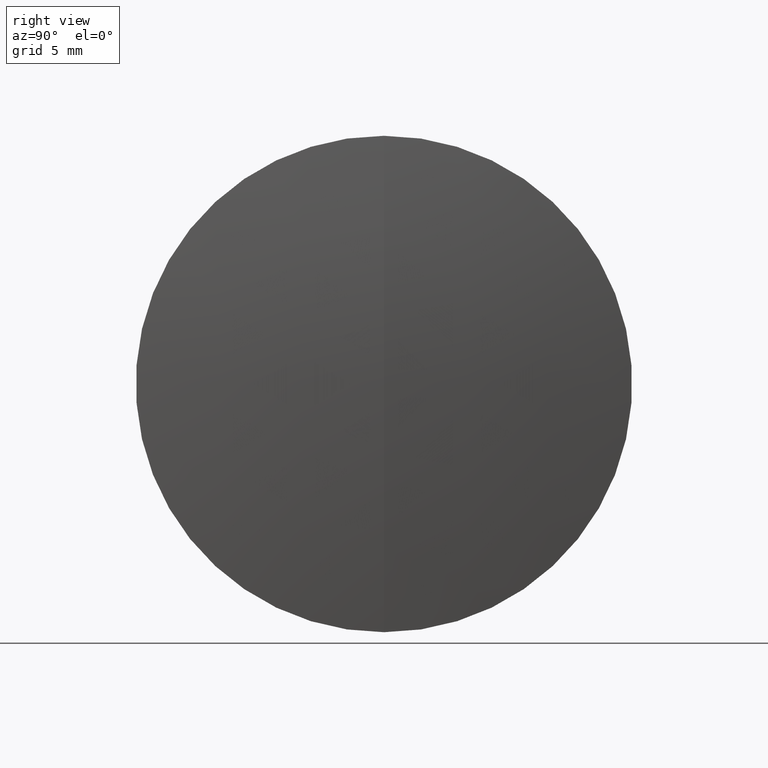
[diagram: clean part render]
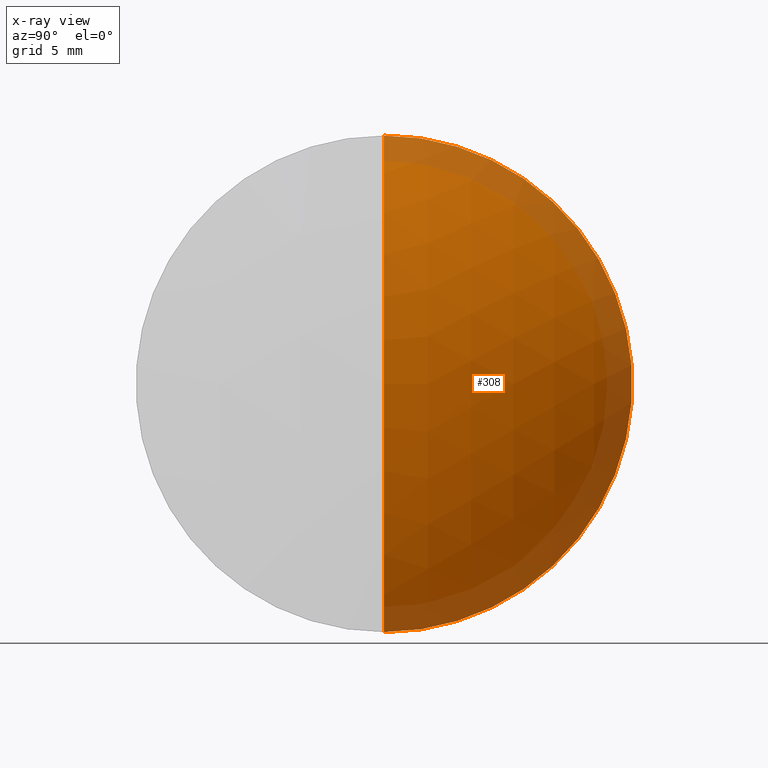
[diagram: x-ray — body ghosted, one internal face saturated and labeled with its STEP entity id]
A machine part, right view, then the same camera in x-ray: the body is ghosted and one INTERNAL B-rep face — a face not visible from any outside direction — is saturated and labeled: STEP entity #308.
In plain terms, the highlighted spherical surface has radius 22.28 mm.
Its self-contained STEP definition (entity closure, byte-faithful):
#4 = VERTEX_POINT ( 'NONE', #13 ) ;
#10 = CARTESIAN_POINT ( 'NONE',  ( 14.87966897357473400, 0.0000000000000000000, 1.355252715606880500E-017 ) ) ;
#11 = CARTESIAN_POINT ( 'NONE',  ( 14.87966897357473400, 0.0000000000000000000, 1.355252715606880500E-017 ) ) ;
#13 = CARTESIAN_POINT ( 'NONE',  ( 37.15966897357473200, 0.0000000000000000000, 1.377809061406220300E-015 ) ) ;
#14 = AXIS2_PLACEMENT_3D ( 'NONE', #321, #193, #220 ) ;
#39 = CIRCLE ( 'NONE', #14, 12.49999999999999800 ) ;
#43 = CIRCLE ( 'NONE', #284, 22.28000000000000100 ) ;
#60 = ORIENTED_EDGE ( 'NONE', *, *, #98, .F. ) ;
#79 = CARTESIAN_POINT ( 'NONE',  ( 33.32278150915288300, 1.530808498934191300E-015, -12.49999999999999800 ) ) ;
#98 = EDGE_CURVE ( 'NONE', #146, #282, #39, .T. ) ;
#118 = EDGE_CURVE ( 'NONE', #4, #146, #43, .T. ) ;
#130 = AXIS2_PLACEMENT_3D ( 'NONE', #260, #206, #346 ) ;
#139 = ORIENTED_EDGE ( 'NONE', *, *, #318, .T. ) ;
#146 = VERTEX_POINT ( 'NONE', #278 ) ;
#148 = DIRECTION ( 'NONE',  ( 0.0000000000000000000, -1.000000000000000000, 0.0000000000000000000 ) ) ;
#150 = EDGE_LOOP ( 'NONE', ( #171, #139, #60 ) ) ;
#151 = AXIS2_PLACEMENT_3D ( 'NONE', #11, #155, #272 ) ;
#155 = DIRECTION ( 'NONE',  ( 0.0000000000000000000, 1.000000000000000000, 0.0000000000000000000 ) ) ;
#164 = FACE_OUTER_BOUND ( 'NONE', #150, .T. ) ;
#166 = CIRCLE ( 'NONE', #130, 22.28000000000000100 ) ;
#171 = ORIENTED_EDGE ( 'NONE', *, *, #118, .F. ) ;
#191 = SPHERICAL_SURFACE ( 'NONE', #151, 22.28000000000000100 ) ;
#193 = DIRECTION ( 'NONE',  ( -1.000000000000000000, -0.0000000000000000000, -0.0000000000000000000 ) ) ;
#206 = DIRECTION ( 'NONE',  ( -0.0000000000000000000, 1.000000000000000000, 1.224646799147353200E-016 ) ) ;
#220 = DIRECTION ( 'NONE',  ( 0.0000000000000000000, 0.0000000000000000000, 1.000000000000000000 ) ) ;
#237 = DIRECTION ( 'NONE',  ( 0.0000000000000000000, 0.0000000000000000000, -1.000000000000000000 ) ) ;
#260 = CARTESIAN_POINT ( 'NONE',  ( 14.87966897357473400, 0.0000000000000000000, 1.355252715606880500E-017 ) ) ;
#272 = DIRECTION ( 'NONE',  ( 0.0000000000000000000, 0.0000000000000000000, 1.000000000000000000 ) ) ;
#278 = CARTESIAN_POINT ( 'NONE',  ( 33.32278150915288300, 0.0000000000000000000, 12.49999999999999800 ) ) ;
#282 = VERTEX_POINT ( 'NONE', #79 ) ;
#284 = AXIS2_PLACEMENT_3D ( 'NONE', #10, #148, #237 ) ;
#308 = ADVANCED_FACE ( 'NONE', ( #164 ), #191, .T. ) ;
#318 = EDGE_CURVE ( 'NONE', #4, #282, #166, .T. ) ;
#321 = CARTESIAN_POINT ( 'NONE',  ( 33.32278150915288300, 0.0000000000000000000, 0.0000000000000000000 ) ) ;
#346 = DIRECTION ( 'NONE',  ( 0.0000000000000000000, -1.224646799147353200E-016, 1.000000000000000000 ) ) ;